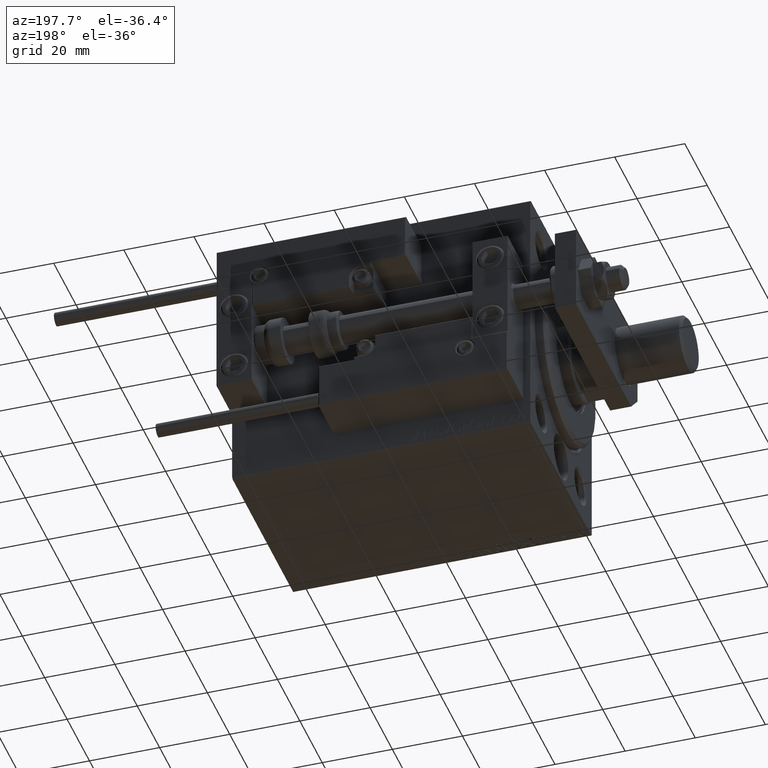
[diagram: clean part render]
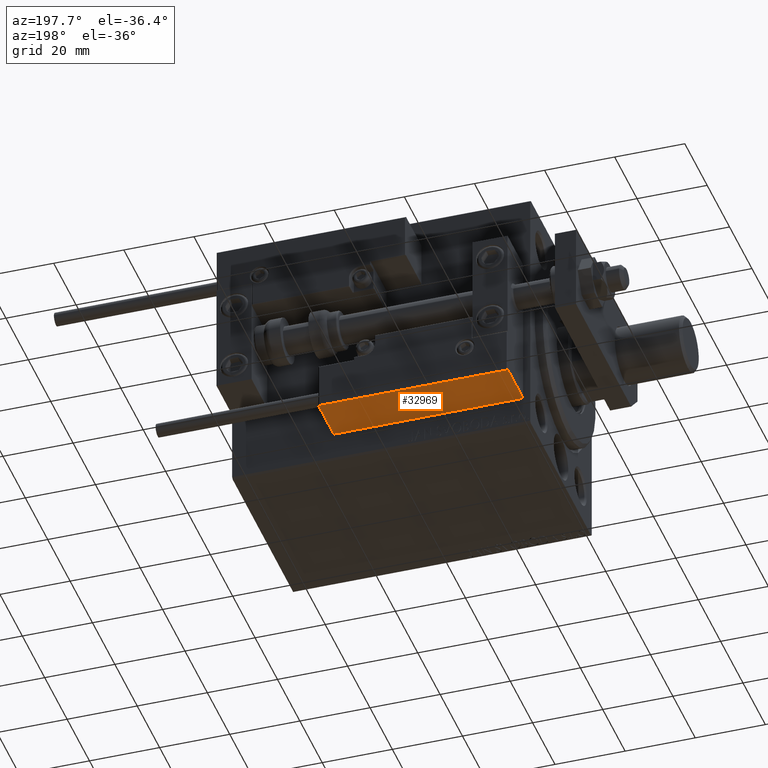
[diagram: same view with one face highlighted and labeled with its STEP entity id]
A machine part, auxiliary view. The second image highlights one B-rep face of the part: STEP entity #32969.
In plain terms, the highlighted planar face has unit normal (0, 0, 1).
Its self-contained STEP definition (entity closure, byte-faithful):
#873 = ORIENTED_EDGE ( 'NONE', *, *, #29576, .T. ) ;
#1035 = VERTEX_POINT ( 'NONE', #12108 ) ;
#2411 = VECTOR ( 'NONE', #30636, 1000.000000000000000 ) ;
#3442 = DIRECTION ( 'NONE',  ( -1.000000000000000000, 6.424901762877062263E-17, 0.000000000000000000 ) ) ;
#3788 = CARTESIAN_POINT ( 'NONE',  ( -26.99999999999993605, 20.00000000000002132, 14.00000000000000000 ) ) ;
#4781 = VERTEX_POINT ( 'NONE', #23262 ) ;
#5412 = PLANE ( 'NONE',  #43593 ) ;
#7853 = LINE ( 'NONE', #51102, #50170 ) ;
#8375 = DIRECTION ( 'NONE',  ( -0.000000000000000000, -0.000000000000000000, -1.000000000000000000 ) ) ;
#10846 = ORIENTED_EDGE ( 'NONE', *, *, #12892, .F. ) ;
#12108 = CARTESIAN_POINT ( 'NONE',  ( -26.99999999999993605, 20.00000000000002132, 0.000000000000000000 ) ) ;
#12751 = CARTESIAN_POINT ( 'NONE',  ( 27.00000000000006395, 20.00000000000001776, 13.70000000000000107 ) ) ;
#12892 = EDGE_CURVE ( 'NONE', #4781, #1035, #50942, .T. ) ;
#14143 = VECTOR ( 'NONE', #3442, 1000.000000000000000 ) ;
#15143 = VERTEX_POINT ( 'NONE', #12751 ) ;
#16060 = LINE ( 'NONE', #48053, #36163 ) ;
#16657 = DIRECTION ( 'NONE',  ( 1.000000000000000000, -6.424901762877063495E-17, 0.000000000000000000 ) ) ;
#17284 = VERTEX_POINT ( 'NONE', #50764 ) ;
#17926 = EDGE_LOOP ( 'NONE', ( #10846, #873, #31096, #27439 ) ) ;
#18074 = EDGE_CURVE ( 'NONE', #17284, #1035, #43260, .T. ) ;
#19339 = CARTESIAN_POINT ( 'NONE',  ( 27.00000000000006395, 20.00000000000001776, 0.000000000000000000 ) ) ;
#20797 = CARTESIAN_POINT ( 'NONE',  ( 27.00000000000006395, 20.00000000000001776, 14.00000000000000000 ) ) ;
#23262 = CARTESIAN_POINT ( 'NONE',  ( -26.99999999999993605, 20.00000000000002132, 13.70000000000000107 ) ) ;
#27439 = ORIENTED_EDGE ( 'NONE', *, *, #18074, .T. ) ;
#28004 = DIRECTION ( 'NONE',  ( 1.000000000000000000, -6.424901762877063495E-17, -0.000000000000000000 ) ) ;
#29576 = EDGE_CURVE ( 'NONE', #4781, #15143, #16060, .T. ) ;
#30636 = DIRECTION ( 'NONE',  ( -0.000000000000000000, -0.000000000000000000, -1.000000000000000000 ) ) ;
#31096 = ORIENTED_EDGE ( 'NONE', *, *, #47862, .T. ) ;
#32969 = ADVANCED_FACE ( 'NONE', ( #40322 ), #5412, .F. ) ;
#36163 = VECTOR ( 'NONE', #28004, 1000.000000000000000 ) ;
#36423 = DIRECTION ( 'NONE',  ( -6.424901762877063495E-17, -1.000000000000000000, 0.000000000000000000 ) ) ;
#40322 = FACE_OUTER_BOUND ( 'NONE', #17926, .T. ) ;
#43260 = LINE ( 'NONE', #19339, #14143 ) ;
#43593 = AXIS2_PLACEMENT_3D ( 'NONE', #20797, #36423, #16657 ) ;
#47862 = EDGE_CURVE ( 'NONE', #15143, #17284, #7853, .T. ) ;
#48053 = CARTESIAN_POINT ( 'NONE',  ( 27.00000000000006395, 20.00000000000001776, 13.70000000000000107 ) ) ;
#50170 = VECTOR ( 'NONE', #8375, 1000.000000000000000 ) ;
#50764 = CARTESIAN_POINT ( 'NONE',  ( 27.00000000000006395, 20.00000000000001776, 0.000000000000000000 ) ) ;
#50942 = LINE ( 'NONE', #3788, #2411 ) ;
#51102 = CARTESIAN_POINT ( 'NONE',  ( 27.00000000000006395, 20.00000000000001776, 14.00000000000000000 ) ) ;